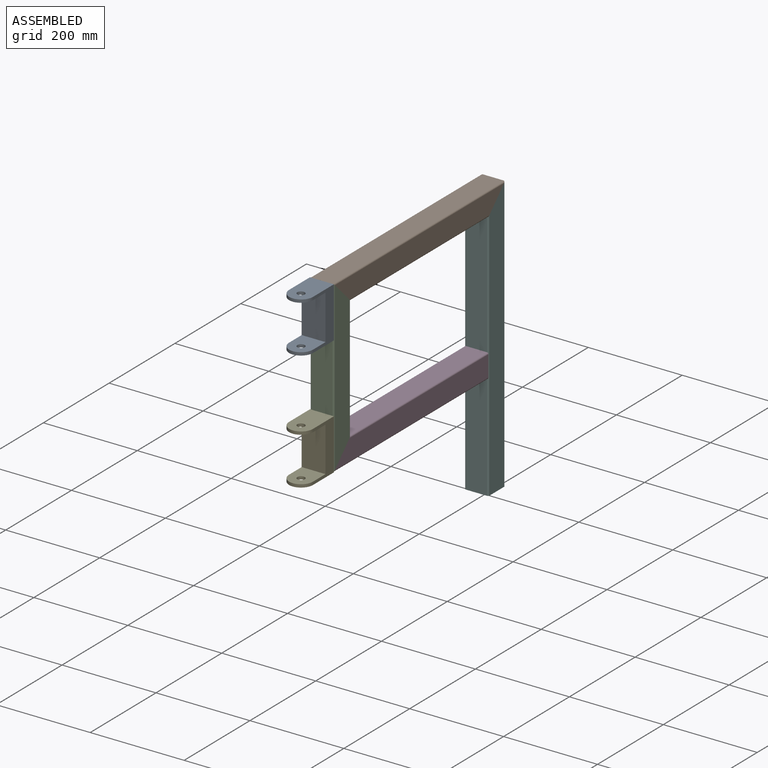
[diagram: assembled view]
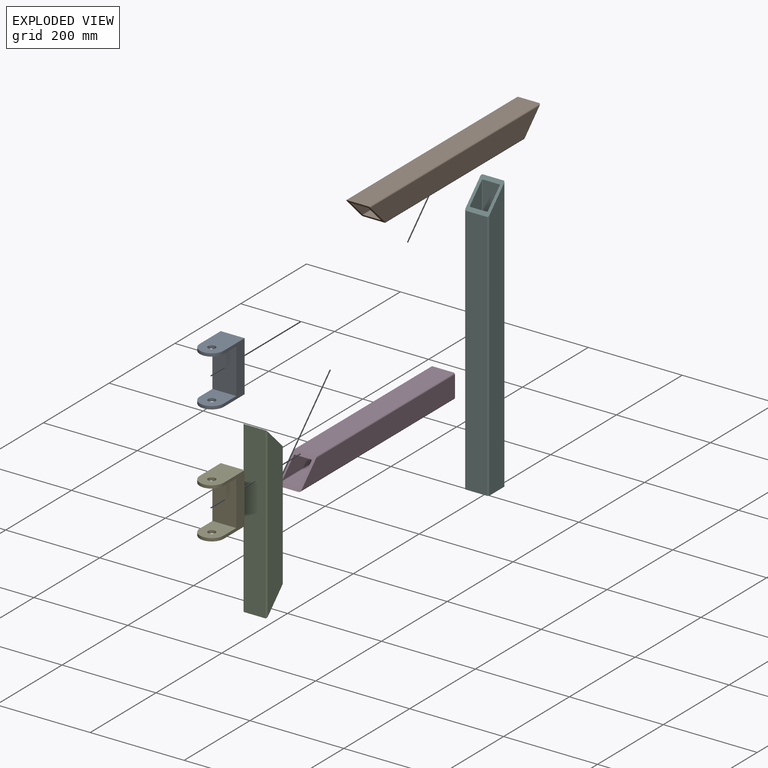
[diagram: exploded view]
GUIDED TOUR — MATED ASSEMBLY (Onshape document 9ad25f635f162971950e628b, AutoMate assembly 9ad25f635f162971950e628b_18f4b82e7d4711329bdc06ee_f6ed02566342cb4e374ab72a_default)

This assembly has 6 components, labeled P0..P5 below (a component is one placed occurrence of a part; the same part can appear more than once), held together by 6 mates. A mate is a constraint between two components; its type names the relative motion it leaves free:
  FASTENED — locks the two components together rigidly (no relative motion).
Axis/direction vectors are unit vectors and 'through' points are millimeter coordinates, both in the assembly's world frame.

MATES
  1. FASTENED "Fastened 1": P1 <-> P5, direction (1.000, 0.000, 0.000) through (0.00, 25.40, 587.38) mm
  2. FASTENED "Fastened 3": P2 <-> P1, direction (0.000, 0.707, 0.707) through (0.00, -488.95, 581.03) mm
  3. FASTENED "Fastened 5": P3 <-> P2, direction (0.000, -0.707, 0.707) through (0.00, -469.89, 250.84) mm
  4. FASTENED "Fastened 7": P4 <-> P2, direction (0.000, 1.000, 0.000) through (0.00, -495.30, 225.43) mm
  5. FASTENED "Fastened 4": P5 <-> P1, direction (0.000, -0.707, 0.707) through (0.00, 0.00, 561.98) mm
  6. FASTENED "Fastened 6": P0 <-> P2, direction (0.000, 1.000, 0.000) through (0.00, -495.30, 587.38) mm

ASSEMBLY ORDER
  1. P5 — the base component [order verified]
  2. P3 [order verified]
  3. P1 [order verified]
  4. P2 [order verified]
  5. P4 [order verified]
  6. P0 [order verified]
Order-tag legend:
  [order verified] — this step's position reverses a verified removal order: the component was checked to insert without passing through the ones already placed.

Of the 6 components, 6 carry the full construction recipe — the FeatureScript program that regenerates the part's solid from scratch; the rest are supplied as boundary geometry only.
Each toured component is shown spotlighted twice — in the assembled view, then in the exploded view, where a leader line traces a displaced component back to its assembled socket (saturated green if recipe-attached, orange if geometry-only; every other component desaturated gray) — followed by its recipe or geometry summary and the mates that hold it.
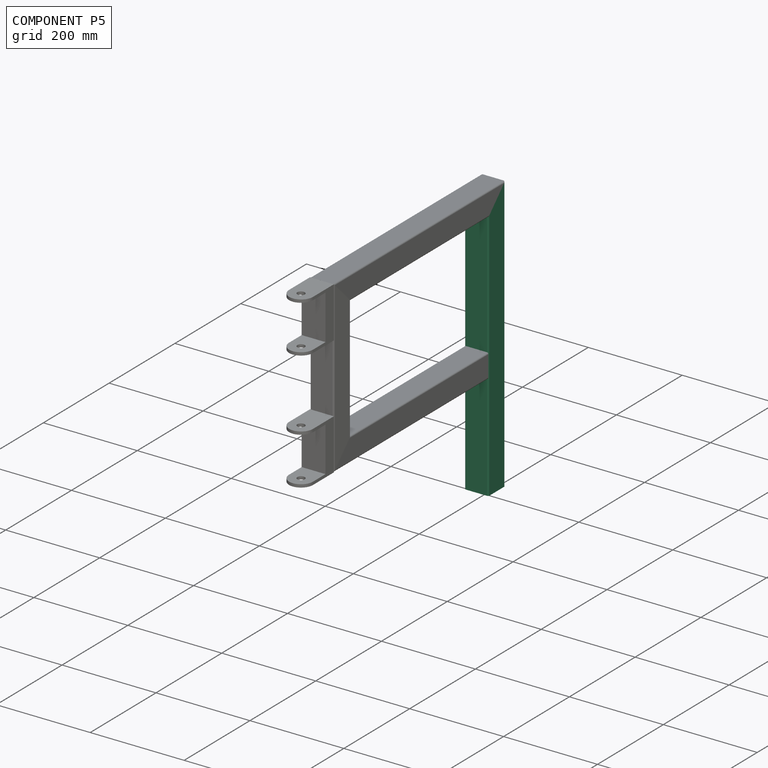
[diagram: component P5 — assembled]
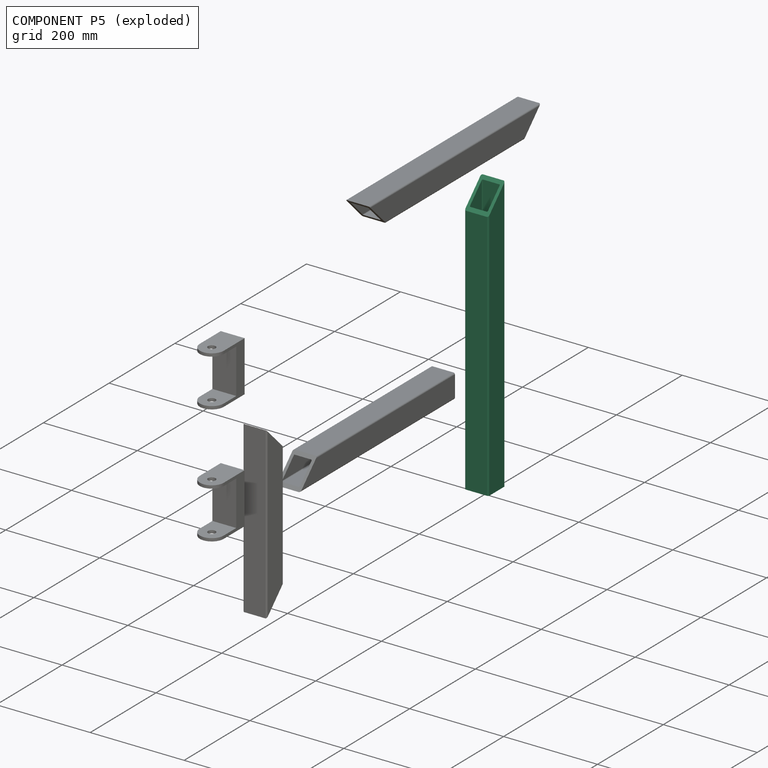
[diagram: component P5 — exploded]
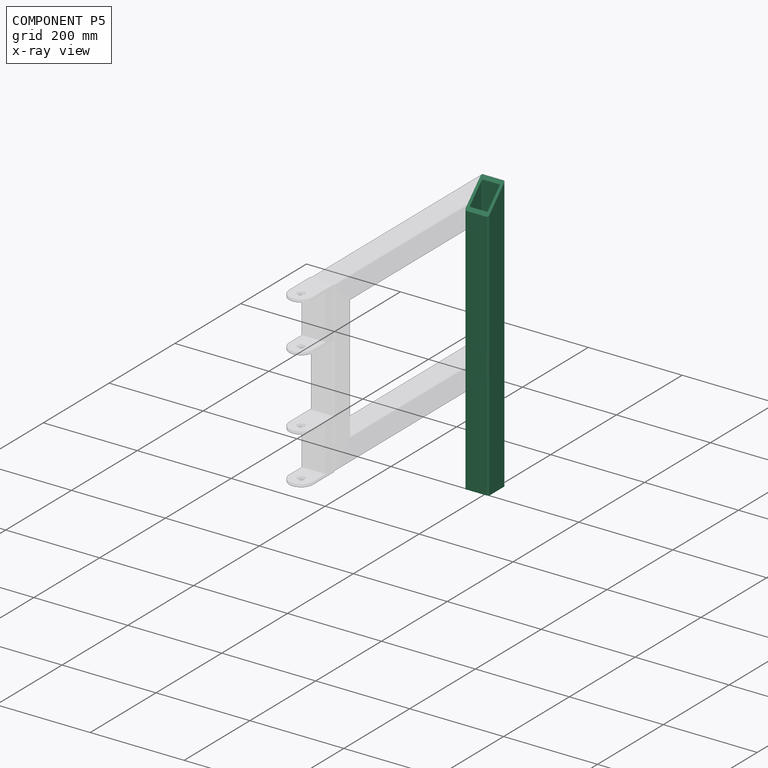
[diagram: component P5 — x-ray view]
COMPONENT P5 — recipe-attached (CADFS 00305997, mesh-verified: the recipe's output STEP matches this component's geometry to below the mesh-comparison resolution (tessellation chordal tolerance ~0.888 mm)).
Held by: FASTENED mate "Fastened 1" to P1; FASTENED mate "Fastened 4" to P1.
Construction recipe (FeatureScript — the CAD program that rebuilds this solid; sketch coordinates are in the units given by the * unit suffixes, e.g. mm):

FeatureScript 1511;
import(path : "onshape/std/geometry.fs", version : "1511.0");
import(path : "onshape/std/common.fs", version : "1511.0");
const mm = millimeter;
const VERTEX = EntityType.VERTEX;
const EDGE = EntityType.EDGE;
const FACE = EntityType.FACE;
const BODY = EntityType.BODY;
function v(x, y){return vector(x, y);}
function OD(order){return orderDisambiguation(order);}
function OSD(set){return originalSetDisambiguation(set);}
function TD(topology){return topologyDisambiguation(topology);}
function TDD(query){return trueDependencyDisambiguation(query);}
function sQuery(a, b, c) {return sketchEntityQuery(a, b, c);}

annotation { "Feature Type Name" : "Feature", "Feature Type Description" : "" }
export const myFeature = defineFeature(function(context is Context, id is Id, definition is map)
    precondition{}
    {
        {
            var Q0;
            Q0=qCreatedBy(makeId("Top.planeOp"),FACE);
            var sketch = newSketch(context, id + "F0", { "sketchPlane" : qUnion([Q0])});
            skLineSegment(sketch, "E0.bottom", {"start": v(-22.22, 25.4) * mm, "end": v(22.23, 25.4) * mm});
            skLineSegment(sketch, "E0.top", {"start": v(-22.23, -25.4) * mm, "end": v(22.23, -25.4) * mm});
            skLineSegment(sketch, "E0.left", {"start": v(-25.4, 22.22) * mm, "end": v(-25.4, -22.23) * mm});
            skLineSegment(sketch, "E0.right", {"start": v(25.4, 22.22) * mm, "end": v(25.4, -22.23) * mm});
            skPoint(sketch, "E0.middle", {"position": v(0, 0) * mm});
            skPoint(sketch, "E1.visualSharp", {"position": v(-25.4, 25.4) * mm});
            skArc(sketch, "E1.filletArc", {"start": v(-22.22, 25.4) * mm, "mid": v(-24.47, 24.47) * mm, "end": v(-25.4, 22.22) * mm});
            skPoint(sketch, "E2.visualSharp", {"position": v(-25.4, -25.4) * mm});
            skArc(sketch, "E2.filletArc", {"start": v(-25.4, -22.23) * mm, "mid": v(-24.47, -24.47) * mm, "end": v(-22.23, -25.4) * mm});
            skPoint(sketch, "E3.visualSharp", {"position": v(25.4, -25.4) * mm});
            skArc(sketch, "E3.filletArc", {"start": v(22.23, -25.4) * mm, "mid": v(24.47, -24.47) * mm, "end": v(25.4, -22.23) * mm});
            skPoint(sketch, "E4.visualSharp", {"position": v(25.4, 25.4) * mm});
            skArc(sketch, "E4.filletArc", {"start": v(25.4, 22.22) * mm, "mid": v(24.47, 24.47) * mm, "end": v(22.23, 25.4) * mm});
            skLineSegment(sketch, "E5.0", {"start": v(-17.46, 19.05) * mm, "end": v(17.46, 19.05) * mm});
            skLineSegment(sketch, "E5.1", {"start": v(-19.05, 17.46) * mm, "end": v(-19.05, -17.46) * mm});
            skLineSegment(sketch, "E5.2", {"start": v(-17.46, -19.05) * mm, "end": v(17.46, -19.05) * mm});
            skLineSegment(sketch, "E5.3", {"start": v(19.05, 17.46) * mm, "end": v(19.05, -17.46) * mm});
            skPoint(sketch, "E6.visualSharp", {"position": v(-19.05, 19.05) * mm});
            skArc(sketch, "E6.filletArc", {"start": v(-17.46, 19.05) * mm, "mid": v(-18.59, 18.59) * mm, "end": v(-19.05, 17.46) * mm});
            skPoint(sketch, "E7.visualSharp", {"position": v(-19.05, -19.05) * mm});
            skArc(sketch, "E7.filletArc", {"start": v(-19.05, -17.46) * mm, "mid": v(-18.59, -18.59) * mm, "end": v(-17.46, -19.05) * mm});
            skPoint(sketch, "E8.visualSharp", {"position": v(19.05, -19.05) * mm});
            skArc(sketch, "E8.filletArc", {"start": v(17.46, -19.05) * mm, "mid": v(18.59, -18.59) * mm, "end": v(19.05, -17.46) * mm});
            skPoint(sketch, "E9.visualSharp", {"position": v(19.05, 19.05) * mm});
            skArc(sketch, "E9.filletArc", {"start": v(19.05, 17.46) * mm, "mid": v(18.59, 18.59) * mm, "end": v(17.46, 19.05) * mm});
            skSolve(sketch);
        }
        {
            var Q0;
            Q0=makeQuery(id+"F0.imprint","IMPRINT",FACE,{"disambiguationData":[TD([[makeQuery(id+"F0.imprint","IMPRINT",EDGE,{"derivedFrom":sQuery(id+"F0.wireOp",EDGE,"E0.bottom")}),-1.0]])]});
            extrude(context, id + "F1", {"entities" : qUnion([Q0]), "depth" : 587.38 * mm});
        }
        {
            var Q0;
            Q0=makeQuery(id+"F1.opExtrude","SWEPT_FACE",FACE,{"disambiguationData":[OSD([sQuery(id+"F0.wireOp",EDGE,"E0.right")])]});
            var sketch = newSketch(context, id + "F2", { "sketchPlane" : qUnion([Q0])});
            skLineSegment(sketch, "E10", {"start": v(25.4, 587.38) * mm, "end": v(-25.4, 536.58) * mm});
            skLineSegment(sketch, "E11", {"start": v(-25.4, 536.58) * mm, "end": v(-25.4, 587.38) * mm});
            skLineSegment(sketch, "E12", {"start": v(-25.4, 587.38) * mm, "end": v(25.4, 587.38) * mm});
            skSolve(sketch);
        }
        {
            var Q0;
            Q0 = qSketchRegion(id + "F2", true);
            extrude(context, id + "F3", {"entities" : qUnion([Q0]), "operationType" : NewBodyOperationType.REMOVE, "endBound" : BoundingType.THROUGH_ALL, "oppositeDirection" : true, "depth" : 25.4 * mm});
        }
    });
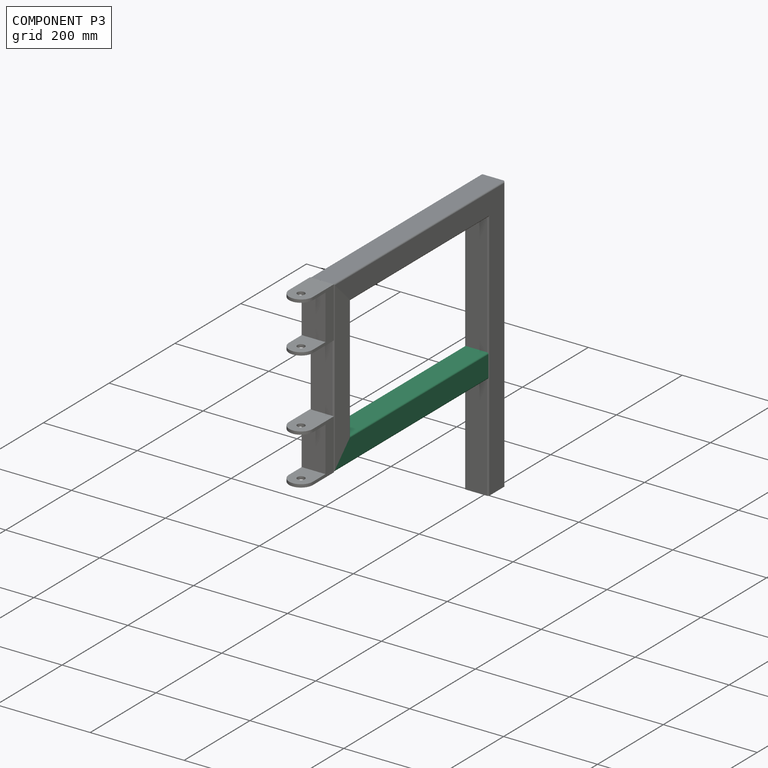
[diagram: component P3 — assembled]
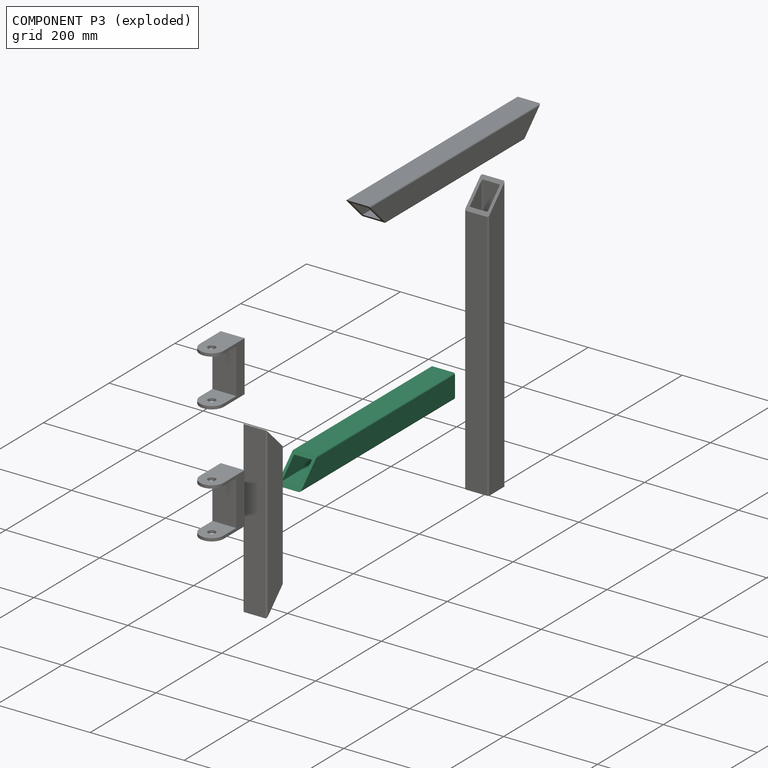
[diagram: component P3 — exploded]
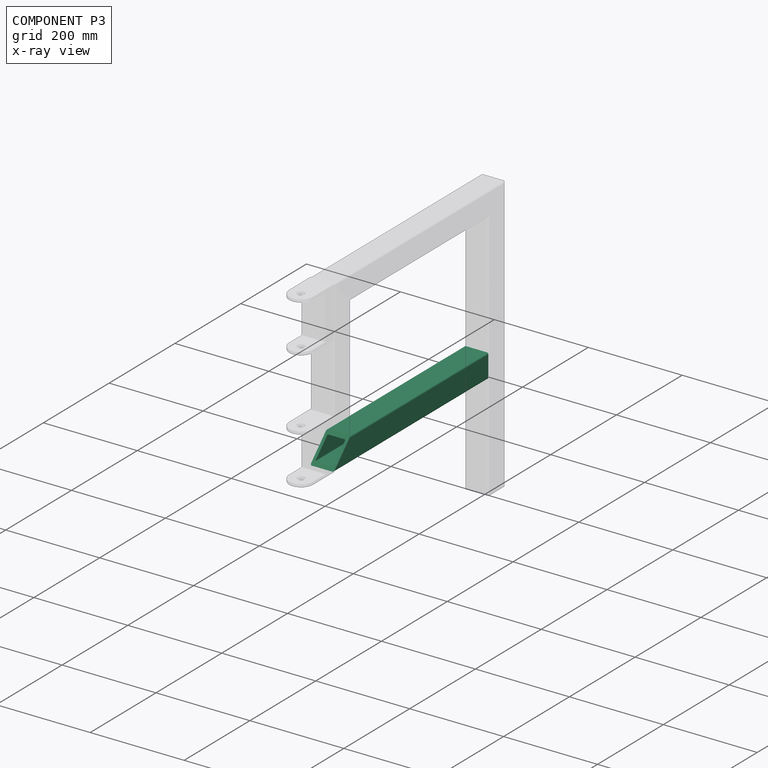
[diagram: component P3 — x-ray view]
COMPONENT P3 — recipe-attached (CADFS 00306060, mesh-verified: the recipe's output STEP matches this component's geometry to below the mesh-comparison resolution (tessellation chordal tolerance ~0.713 mm)).
Held by: FASTENED mate "Fastened 5" to P2.
Construction recipe (FeatureScript — the CAD program that rebuilds this solid; sketch coordinates are in the units given by the * unit suffixes, e.g. mm):

FeatureScript 1511;
import(path : "onshape/std/geometry.fs", version : "1511.0");
import(path : "onshape/std/common.fs", version : "1511.0");
const mm = millimeter;
const VERTEX = EntityType.VERTEX;
const EDGE = EntityType.EDGE;
const FACE = EntityType.FACE;
const BODY = EntityType.BODY;
function v(x, y){return vector(x, y);}
function OD(order){return orderDisambiguation(order);}
function OSD(set){return originalSetDisambiguation(set);}
function TD(topology){return topologyDisambiguation(topology);}
function TDD(query){return trueDependencyDisambiguation(query);}
function sQuery(a, b, c) {return sketchEntityQuery(a, b, c);}

annotation { "Feature Type Name" : "Feature", "Feature Type Description" : "" }
export const myFeature = defineFeature(function(context is Context, id is Id, definition is map)
    precondition{}
    {
        {
            var Q0;
            Q0=qCreatedBy(makeId("Top.planeOp"),FACE);
            var sketch = newSketch(context, id + "F0", { "sketchPlane" : qUnion([Q0])});
            skLineSegment(sketch, "E0.bottom", {"start": v(-22.22, 25.4) * mm, "end": v(22.23, 25.4) * mm});
            skLineSegment(sketch, "E0.top", {"start": v(-22.23, -25.4) * mm, "end": v(22.23, -25.4) * mm});
            skLineSegment(sketch, "E0.left", {"start": v(-25.4, 22.22) * mm, "end": v(-25.4, -22.23) * mm});
            skLineSegment(sketch, "E0.right", {"start": v(25.4, 22.22) * mm, "end": v(25.4, -22.23) * mm});
            skPoint(sketch, "E0.middle", {"position": v(0, 0) * mm});
            skPoint(sketch, "E1.visualSharp", {"position": v(-25.4, 25.4) * mm});
            skArc(sketch, "E1.filletArc", {"start": v(-22.22, 25.4) * mm, "mid": v(-24.47, 24.47) * mm, "end": v(-25.4, 22.22) * mm});
            skPoint(sketch, "E2.visualSharp", {"position": v(-25.4, -25.4) * mm});
            skArc(sketch, "E2.filletArc", {"start": v(-25.4, -22.23) * mm, "mid": v(-24.47, -24.47) * mm, "end": v(-22.23, -25.4) * mm});
            skPoint(sketch, "E3.visualSharp", {"position": v(25.4, -25.4) * mm});
            skArc(sketch, "E3.filletArc", {"start": v(22.23, -25.4) * mm, "mid": v(24.47, -24.47) * mm, "end": v(25.4, -22.23) * mm});
            skPoint(sketch, "E4.visualSharp", {"position": v(25.4, 25.4) * mm});
            skArc(sketch, "E4.filletArc", {"start": v(25.4, 22.22) * mm, "mid": v(24.47, 24.47) * mm, "end": v(22.23, 25.4) * mm});
            skLineSegment(sketch, "E5.0", {"start": v(-17.46, 19.05) * mm, "end": v(17.46, 19.05) * mm});
            skLineSegment(sketch, "E5.1", {"start": v(-19.05, 17.46) * mm, "end": v(-19.05, -17.46) * mm});
            skLineSegment(sketch, "E5.2", {"start": v(-17.46, -19.05) * mm, "end": v(17.46, -19.05) * mm});
            skLineSegment(sketch, "E5.3", {"start": v(19.05, 17.46) * mm, "end": v(19.05, -17.46) * mm});
            skPoint(sketch, "E6.visualSharp", {"position": v(-19.05, 19.05) * mm});
            skArc(sketch, "E6.filletArc", {"start": v(-17.46, 19.05) * mm, "mid": v(-18.59, 18.59) * mm, "end": v(-19.05, 17.46) * mm});
            skPoint(sketch, "E7.visualSharp", {"position": v(-19.05, -19.05) * mm});
            skArc(sketch, "E7.filletArc", {"start": v(-19.05, -17.46) * mm, "mid": v(-18.59, -18.59) * mm, "end": v(-17.46, -19.05) * mm});
            skPoint(sketch, "E8.visualSharp", {"position": v(19.05, -19.05) * mm});
            skArc(sketch, "E8.filletArc", {"start": v(17.46, -19.05) * mm, "mid": v(18.59, -18.59) * mm, "end": v(19.05, -17.46) * mm});
            skPoint(sketch, "E9.visualSharp", {"position": v(19.05, 19.05) * mm});
            skArc(sketch, "E9.filletArc", {"start": v(19.05, 17.46) * mm, "mid": v(18.59, 18.59) * mm, "end": v(17.46, 19.05) * mm});
            skSolve(sketch);
        }
        {
            var Q0;
            Q0=makeQuery(id+"F0.imprint","IMPRINT",FACE,{"disambiguationData":[TD([[makeQuery(id+"F0.imprint","IMPRINT",EDGE,{"derivedFrom":sQuery(id+"F0.wireOp",EDGE,"E0.bottom")}),-1.0]])]});
            extrude(context, id + "F1", {"entities" : qUnion([Q0]), "depth" : 469.9 * mm});
        }
        {
            var Q0;
            Q0=makeQuery(id+"F1.opExtrude","SWEPT_FACE",FACE,{"disambiguationData":[OSD([sQuery(id+"F0.wireOp",EDGE,"E0.right")])]});
            var sketch = newSketch(context, id + "F2", { "sketchPlane" : qUnion([Q0])});
            skLineSegment(sketch, "E10", {"start": v(25.4, 469.9) * mm, "end": v(-25.4, 419.1) * mm});
            skLineSegment(sketch, "E11", {"start": v(-25.4, 419.1) * mm, "end": v(-25.4, 469.9) * mm});
            skLineSegment(sketch, "E12", {"start": v(-25.4, 469.9) * mm, "end": v(25.4, 469.9) * mm});
            skSolve(sketch);
        }
        {
            var Q0;
            Q0=qSketchRegion(id+"F2",true);
            extrude(context, id + "F3", {"entities" : qUnion([Q0]), "operationType" : NewBodyOperationType.REMOVE, "endBound" : BoundingType.THROUGH_ALL, "oppositeDirection" : true, "depth" : 25.4 * mm});
        }
    });
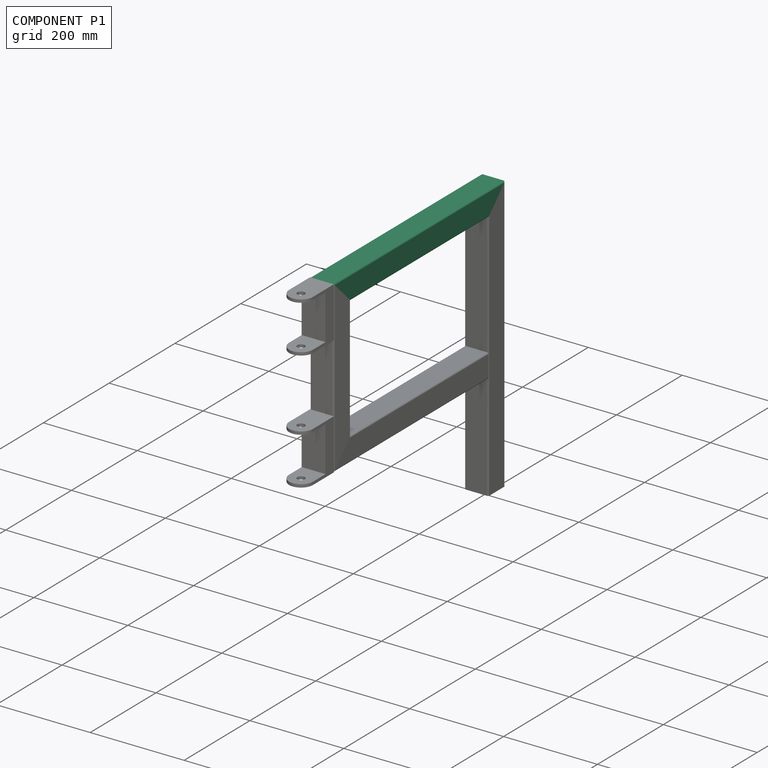
[diagram: component P1 — assembled]
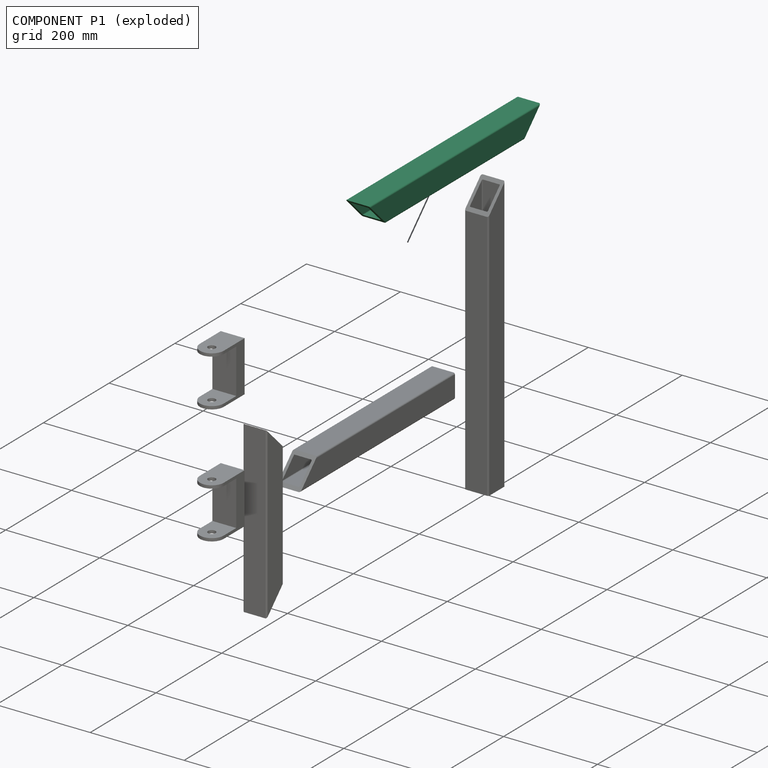
[diagram: component P1 — exploded]
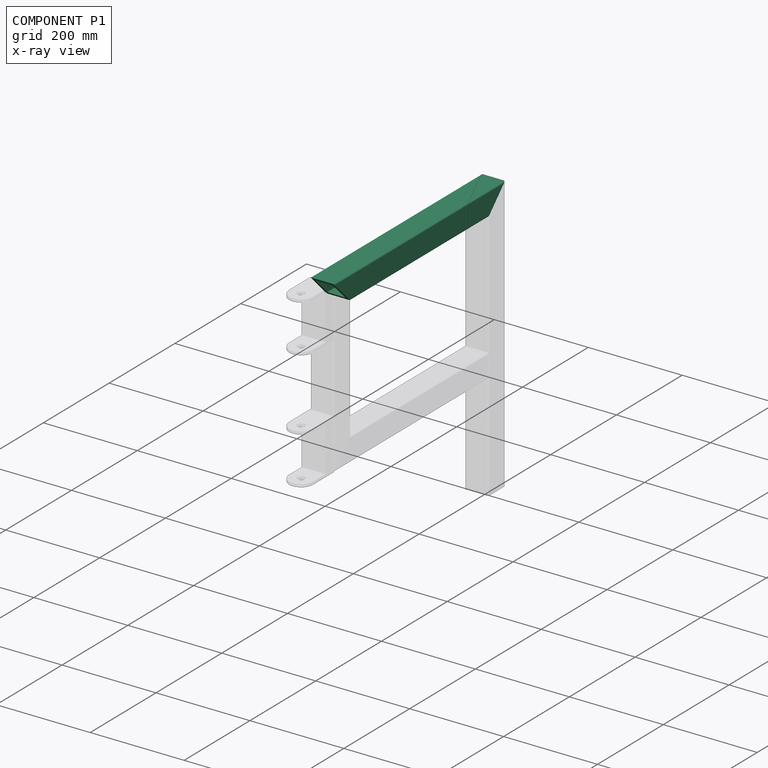
[diagram: component P1 — x-ray view]
COMPONENT P1 — recipe-attached (CADFS 00306047, mesh-verified: the recipe's output STEP matches this component's geometry to below the mesh-comparison resolution (tessellation chordal tolerance ~0.788 mm)).
Held by: FASTENED mate "Fastened 1" to P5; FASTENED mate "Fastened 3" to P2; FASTENED mate "Fastened 4" to P5.
Construction recipe (FeatureScript — the CAD program that rebuilds this solid; sketch coordinates are in the units given by the * unit suffixes, e.g. mm):

FeatureScript 1511;
import(path : "onshape/std/geometry.fs", version : "1511.0");
import(path : "onshape/std/common.fs", version : "1511.0");
const mm = millimeter;
const VERTEX = EntityType.VERTEX;
const EDGE = EntityType.EDGE;
const FACE = EntityType.FACE;
const BODY = EntityType.BODY;
function v(x, y){return vector(x, y);}
function OD(order){return orderDisambiguation(order);}
function OSD(set){return originalSetDisambiguation(set);}
function TD(topology){return topologyDisambiguation(topology);}
function TDD(query){return trueDependencyDisambiguation(query);}
function sQuery(a, b, c) {return sketchEntityQuery(a, b, c);}

annotation { "Feature Type Name" : "Feature", "Feature Type Description" : "" }
export const myFeature = defineFeature(function(context is Context, id is Id, definition is map)
    precondition{}
    {
        {
            var Q0;
            Q0=qCreatedBy(makeId("Top.planeOp"),FACE);
            var sketch = newSketch(context, id + "F0", { "sketchPlane" : qUnion([Q0])});
            skLineSegment(sketch, "E0.bottom", {"start": v(-22.22, 25.4) * mm, "end": v(22.23, 25.4) * mm});
            skLineSegment(sketch, "E0.top", {"start": v(-22.23, -25.4) * mm, "end": v(22.23, -25.4) * mm});
            skLineSegment(sketch, "E0.left", {"start": v(-25.4, 22.22) * mm, "end": v(-25.4, -22.23) * mm});
            skLineSegment(sketch, "E0.right", {"start": v(25.4, 22.22) * mm, "end": v(25.4, -22.23) * mm});
            skPoint(sketch, "E0.middle", {"position": v(0, 0) * mm});
            skPoint(sketch, "E1.visualSharp", {"position": v(-25.4, 25.4) * mm});
            skArc(sketch, "E1.filletArc", {"start": v(-22.22, 25.4) * mm, "mid": v(-24.47, 24.47) * mm, "end": v(-25.4, 22.22) * mm});
            skPoint(sketch, "E2.visualSharp", {"position": v(-25.4, -25.4) * mm});
            skArc(sketch, "E2.filletArc", {"start": v(-25.4, -22.23) * mm, "mid": v(-24.47, -24.47) * mm, "end": v(-22.23, -25.4) * mm});
            skPoint(sketch, "E3.visualSharp", {"position": v(25.4, -25.4) * mm});
            skArc(sketch, "E3.filletArc", {"start": v(22.23, -25.4) * mm, "mid": v(24.47, -24.47) * mm, "end": v(25.4, -22.23) * mm});
            skPoint(sketch, "E4.visualSharp", {"position": v(25.4, 25.4) * mm});
            skArc(sketch, "E4.filletArc", {"start": v(25.4, 22.22) * mm, "mid": v(24.47, 24.47) * mm, "end": v(22.23, 25.4) * mm});
            skLineSegment(sketch, "E5.0", {"start": v(-17.46, 19.05) * mm, "end": v(17.46, 19.05) * mm});
            skLineSegment(sketch, "E5.1", {"start": v(-19.05, 17.46) * mm, "end": v(-19.05, -17.46) * mm});
            skLineSegment(sketch, "E5.2", {"start": v(-17.46, -19.05) * mm, "end": v(17.46, -19.05) * mm});
            skLineSegment(sketch, "E5.3", {"start": v(19.05, 17.46) * mm, "end": v(19.05, -17.46) * mm});
            skPoint(sketch, "E6.visualSharp", {"position": v(-19.05, 19.05) * mm});
            skArc(sketch, "E6.filletArc", {"start": v(-17.46, 19.05) * mm, "mid": v(-18.59, 18.59) * mm, "end": v(-19.05, 17.46) * mm});
            skPoint(sketch, "E7.visualSharp", {"position": v(-19.05, -19.05) * mm});
            skArc(sketch, "E7.filletArc", {"start": v(-19.05, -17.46) * mm, "mid": v(-18.59, -18.59) * mm, "end": v(-17.46, -19.05) * mm});
            skPoint(sketch, "E8.visualSharp", {"position": v(19.05, -19.05) * mm});
            skArc(sketch, "E8.filletArc", {"start": v(17.46, -19.05) * mm, "mid": v(18.59, -18.59) * mm, "end": v(19.05, -17.46) * mm});
            skPoint(sketch, "E9.visualSharp", {"position": v(19.05, 19.05) * mm});
            skArc(sketch, "E9.filletArc", {"start": v(19.05, 17.46) * mm, "mid": v(18.59, 18.59) * mm, "end": v(17.46, 19.05) * mm});
            skSolve(sketch);
        }
        {
            var Q0;
            Q0=makeQuery(id+"F0.imprint","IMPRINT",FACE,{"disambiguationData":[TD([[makeQuery(id+"F0.imprint","IMPRINT",EDGE,{"derivedFrom":sQuery(id+"F0.wireOp",EDGE,"E0.bottom")}),-1.0]])]});
            extrude(context, id + "F1", {"entities" : qUnion([Q0]), "endBound" : BoundingType.SYMMETRIC, "depth" : 520.7 * mm});
        }
        {
            var Q0;
            Q0=makeQuery(id+"F1.opExtrude","SWEPT_FACE",FACE,{"disambiguationData":[OSD([sQuery(id+"F0.wireOp",EDGE,"E0.right")])]});
            var sketch = newSketch(context, id + "F2", { "sketchPlane" : qUnion([Q0])});
            skLineSegment(sketch, "E10", {"start": v(25.4, 260.35) * mm, "end": v(-25.4, 209.55) * mm});
            skLineSegment(sketch, "E11", {"start": v(-25.4, 209.55) * mm, "end": v(-25.4, 260.35) * mm});
            skLineSegment(sketch, "E12", {"start": v(-25.4, 260.35) * mm, "end": v(25.4, 260.35) * mm});
            skLineSegment(sketch, "E13", {"start": v(25.4, -260.35) * mm, "end": v(-25.4, -209.55) * mm});
            skLineSegment(sketch, "E14", {"start": v(-25.4, -209.55) * mm, "end": v(-25.4, -260.35) * mm});
            skLineSegment(sketch, "E15", {"start": v(-25.4, -260.35) * mm, "end": v(25.4, -260.35) * mm});
            skSolve(sketch);
        }
        {
            var Q0;
            Q0=qSketchRegion(id+"F2",true);
            extrude(context, id + "F3", {"entities" : qUnion([Q0]), "operationType" : NewBodyOperationType.REMOVE, "endBound" : BoundingType.THROUGH_ALL, "oppositeDirection" : true, "depth" : 25.4 * mm});
        }
    });
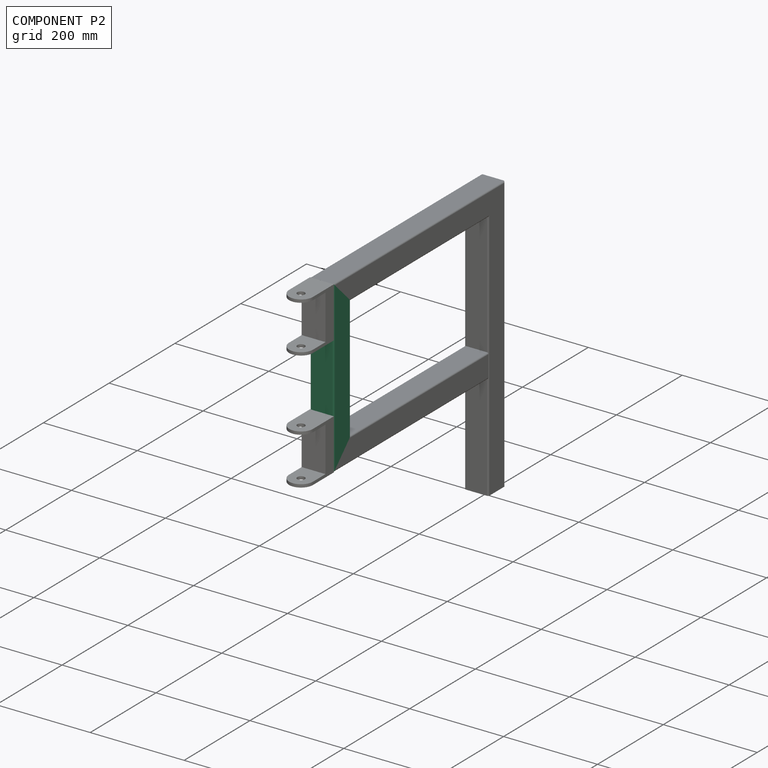
[diagram: component P2 — assembled]
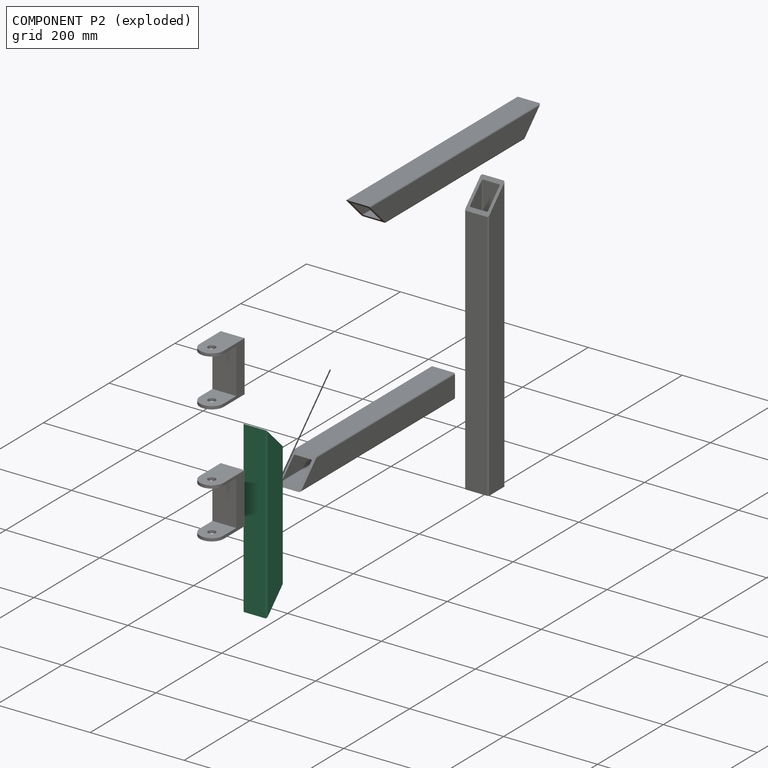
[diagram: component P2 — exploded]
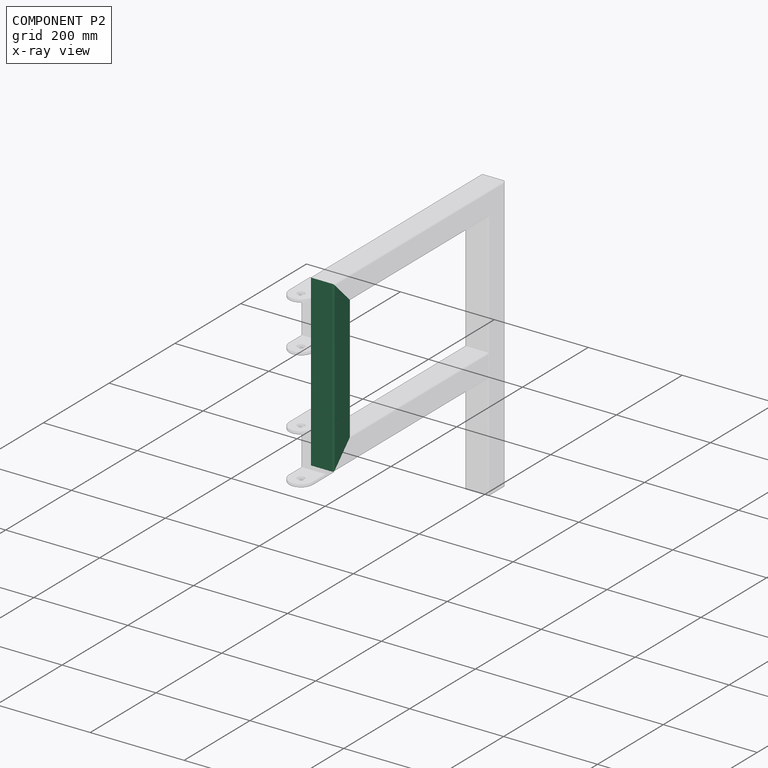
[diagram: component P2 — x-ray view]
COMPONENT P2 — recipe-attached (CADFS 00306058, mesh-verified: the recipe's output STEP matches this component's geometry to below the mesh-comparison resolution (tessellation chordal tolerance ~0.554 mm)).
Held by: FASTENED mate "Fastened 3" to P1; FASTENED mate "Fastened 5" to P3; FASTENED mate "Fastened 7" to P4; FASTENED mate "Fastened 6" to P0.
Construction recipe (FeatureScript — the CAD program that rebuilds this solid; sketch coordinates are in the units given by the * unit suffixes, e.g. mm):

FeatureScript 1511;
import(path : "onshape/std/geometry.fs", version : "1511.0");
import(path : "onshape/std/common.fs", version : "1511.0");
const mm = millimeter;
const VERTEX = EntityType.VERTEX;
const EDGE = EntityType.EDGE;
const FACE = EntityType.FACE;
const BODY = EntityType.BODY;
function v(x, y){return vector(x, y);}
function OD(order){return orderDisambiguation(order);}
function OSD(set){return originalSetDisambiguation(set);}
function TD(topology){return topologyDisambiguation(topology);}
function TDD(query){return trueDependencyDisambiguation(query);}
function sQuery(a, b, c) {return sketchEntityQuery(a, b, c);}

annotation { "Feature Type Name" : "Feature", "Feature Type Description" : "" }
export const myFeature = defineFeature(function(context is Context, id is Id, definition is map)
    precondition{}
    {
        {
            var Q0;
            Q0=qCreatedBy(makeId("Top.planeOp"),FACE);
            var sketch = newSketch(context, id + "F0", { "sketchPlane" : qUnion([Q0])});
            skLineSegment(sketch, "E0.bottom", {"start": v(-22.22, 25.4) * mm, "end": v(22.23, 25.4) * mm});
            skLineSegment(sketch, "E0.top", {"start": v(-22.23, -25.4) * mm, "end": v(22.23, -25.4) * mm});
            skLineSegment(sketch, "E0.left", {"start": v(-25.4, 22.22) * mm, "end": v(-25.4, -22.23) * mm});
            skLineSegment(sketch, "E0.right", {"start": v(25.4, 22.22) * mm, "end": v(25.4, -22.23) * mm});
            skPoint(sketch, "E0.middle", {"position": v(0, 0) * mm});
            skPoint(sketch, "E1.visualSharp", {"position": v(-25.4, 25.4) * mm});
            skArc(sketch, "E1.filletArc", {"start": v(-22.22, 25.4) * mm, "mid": v(-24.47, 24.47) * mm, "end": v(-25.4, 22.22) * mm});
            skPoint(sketch, "E2.visualSharp", {"position": v(-25.4, -25.4) * mm});
            skArc(sketch, "E2.filletArc", {"start": v(-25.4, -22.23) * mm, "mid": v(-24.47, -24.47) * mm, "end": v(-22.23, -25.4) * mm});
            skPoint(sketch, "E3.visualSharp", {"position": v(25.4, -25.4) * mm});
            skArc(sketch, "E3.filletArc", {"start": v(22.23, -25.4) * mm, "mid": v(24.47, -24.47) * mm, "end": v(25.4, -22.23) * mm});
            skPoint(sketch, "E4.visualSharp", {"position": v(25.4, 25.4) * mm});
            skArc(sketch, "E4.filletArc", {"start": v(25.4, 22.22) * mm, "mid": v(24.47, 24.47) * mm, "end": v(22.23, 25.4) * mm});
            skLineSegment(sketch, "E5.0", {"start": v(-17.46, 19.05) * mm, "end": v(17.46, 19.05) * mm});
            skLineSegment(sketch, "E5.1", {"start": v(-19.05, 17.46) * mm, "end": v(-19.05, -17.46) * mm});
            skLineSegment(sketch, "E5.2", {"start": v(-17.46, -19.05) * mm, "end": v(17.46, -19.05) * mm});
            skLineSegment(sketch, "E5.3", {"start": v(19.05, 17.46) * mm, "end": v(19.05, -17.46) * mm});
            skPoint(sketch, "E6.visualSharp", {"position": v(-19.05, 19.05) * mm});
            skArc(sketch, "E6.filletArc", {"start": v(-17.46, 19.05) * mm, "mid": v(-18.59, 18.59) * mm, "end": v(-19.05, 17.46) * mm});
            skPoint(sketch, "E7.visualSharp", {"position": v(-19.05, -19.05) * mm});
            skArc(sketch, "E7.filletArc", {"start": v(-19.05, -17.46) * mm, "mid": v(-18.59, -18.59) * mm, "end": v(-17.46, -19.05) * mm});
            skPoint(sketch, "E8.visualSharp", {"position": v(19.05, -19.05) * mm});
            skArc(sketch, "E8.filletArc", {"start": v(17.46, -19.05) * mm, "mid": v(18.59, -18.59) * mm, "end": v(19.05, -17.46) * mm});
            skPoint(sketch, "E9.visualSharp", {"position": v(19.05, 19.05) * mm});
            skArc(sketch, "E9.filletArc", {"start": v(19.05, 17.46) * mm, "mid": v(18.59, 18.59) * mm, "end": v(17.46, 19.05) * mm});
            skSolve(sketch);
        }
        {
            var Q0;
            Q0=makeQuery(id+"F0.imprint","IMPRINT",FACE,{"disambiguationData":[TD([[makeQuery(id+"F0.imprint","IMPRINT",EDGE,{"derivedFrom":sQuery(id+"F0.wireOp",EDGE,"E0.bottom")}),-1.0]])]});
            extrude(context, id + "F1", {"entities" : qUnion([Q0]), "endBound" : BoundingType.SYMMETRIC, "depth" : 361.95 * mm});
        }
        {
            var Q0;
            Q0=makeQuery(id+"F1.opExtrude","SWEPT_FACE",FACE,{"disambiguationData":[OSD([sQuery(id+"F0.wireOp",EDGE,"E0.right")])]});
            var sketch = newSketch(context, id + "F2", { "sketchPlane" : qUnion([Q0])});
            skLineSegment(sketch, "E10", {"start": v(25.4, 180.98) * mm, "end": v(-25.4, 130.17) * mm});
            skLineSegment(sketch, "E11", {"start": v(-25.4, 130.17) * mm, "end": v(-25.4, 180.97) * mm});
            skLineSegment(sketch, "E12", {"start": v(-25.4, 180.97) * mm, "end": v(25.4, 180.98) * mm});
            skLineSegment(sketch, "E13", {"start": v(25.4, -180.98) * mm, "end": v(-25.4, -130.17) * mm});
            skLineSegment(sketch, "E14", {"start": v(-25.4, -130.17) * mm, "end": v(-25.4, -180.98) * mm});
            skLineSegment(sketch, "E15", {"start": v(-25.4, -180.98) * mm, "end": v(25.4, -180.97) * mm});
            skSolve(sketch);
        }
        {
            var Q0;
            Q0=qSketchRegion(id+"F2",true);
            extrude(context, id + "F3", {"entities" : qUnion([Q0]), "operationType" : NewBodyOperationType.REMOVE, "endBound" : BoundingType.THROUGH_ALL, "oppositeDirection" : true, "depth" : 25.4 * mm});
        }
    });
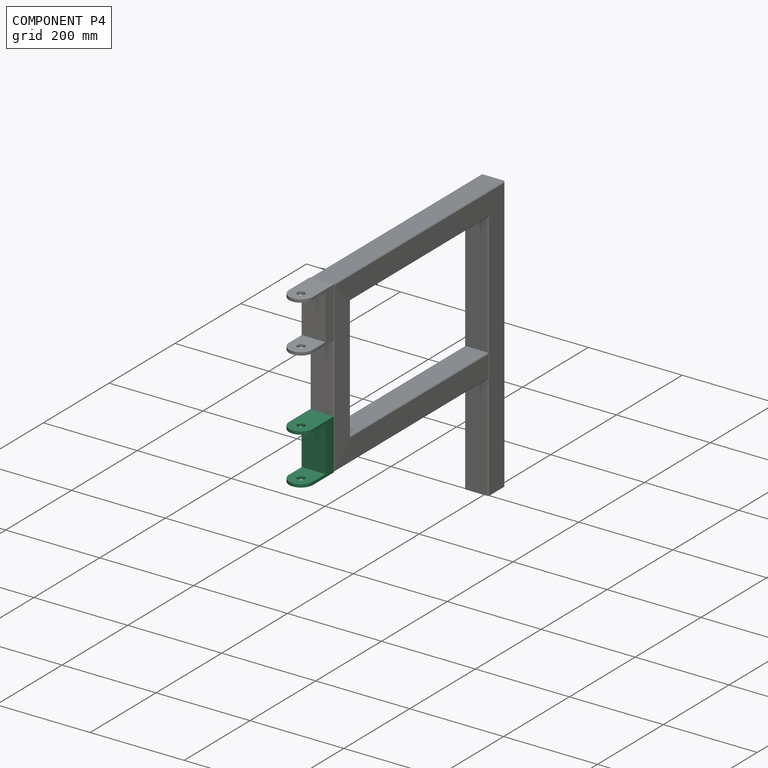
[diagram: component P4 — assembled]
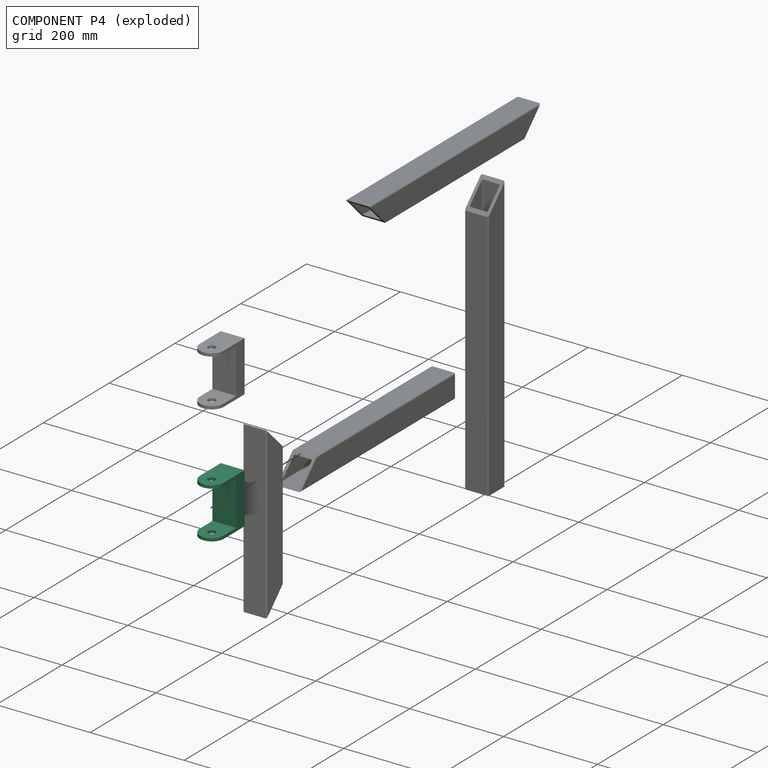
[diagram: component P4 — exploded]
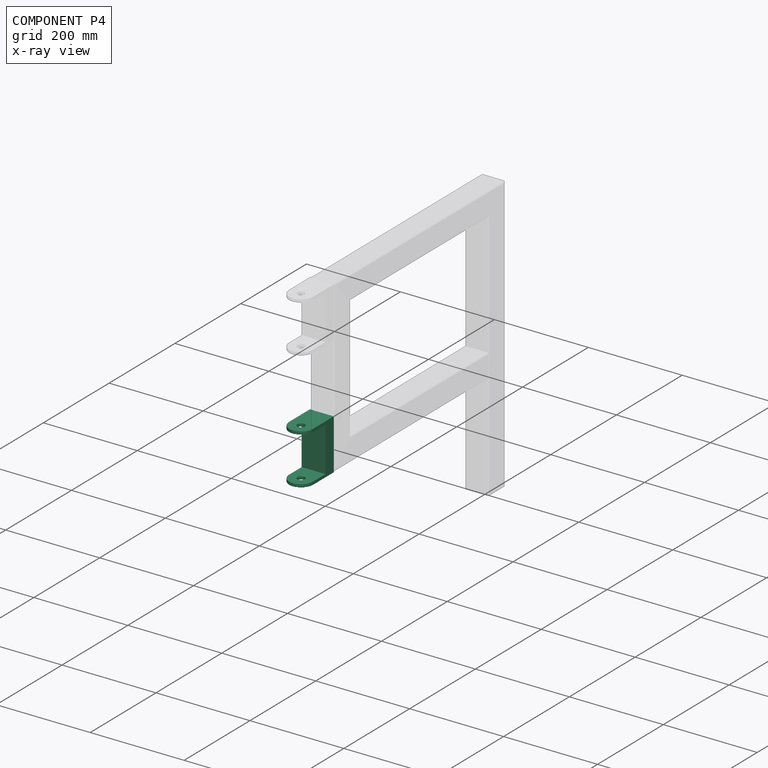
[diagram: component P4 — x-ray view]
COMPONENT P4 — same part as P0 (CADFS 00307764); its construction recipe is shown at P0.
Held by: FASTENED mate "Fastened 7" to P2.
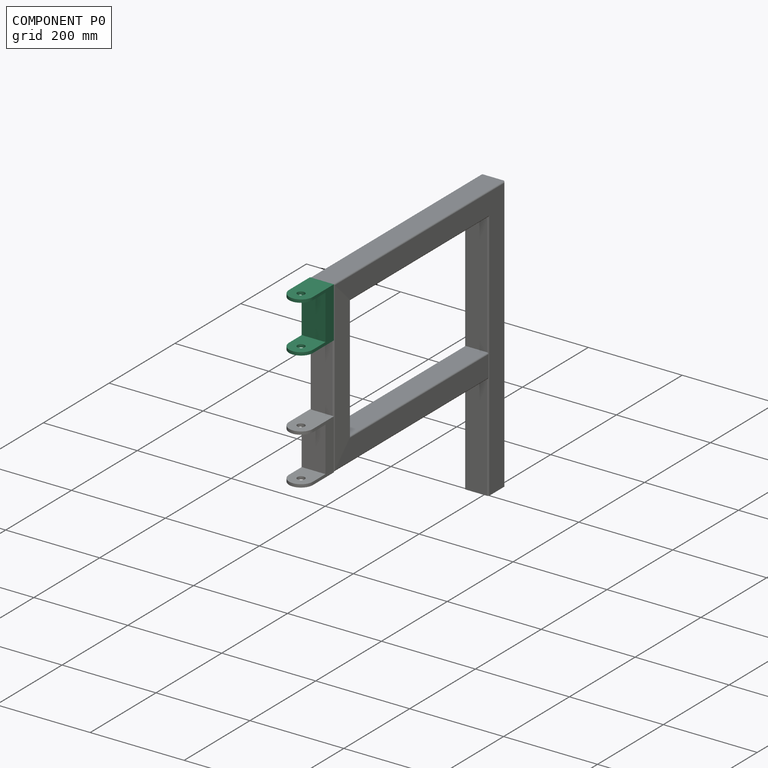
[diagram: component P0 — assembled]
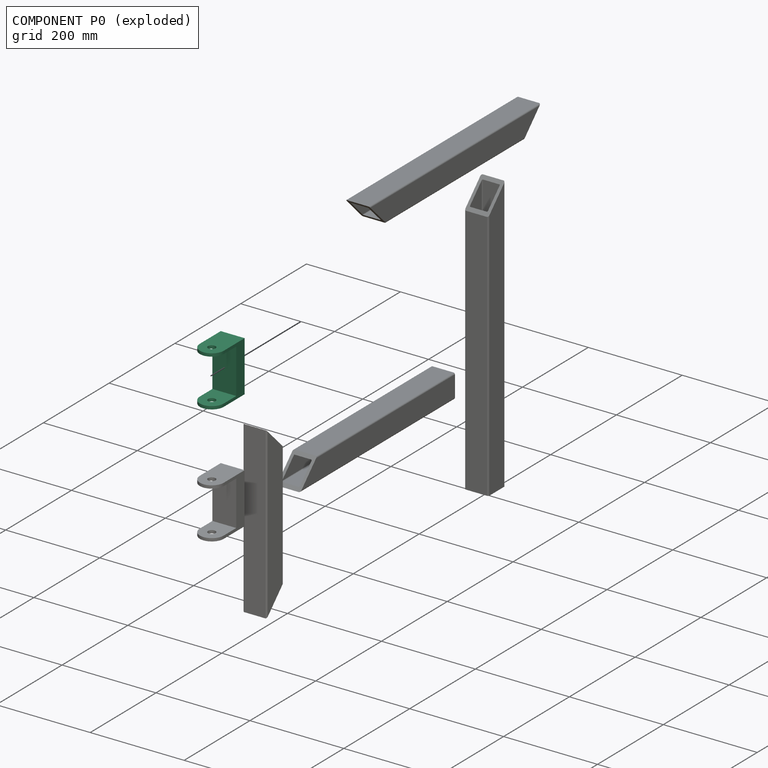
[diagram: component P0 — exploded]
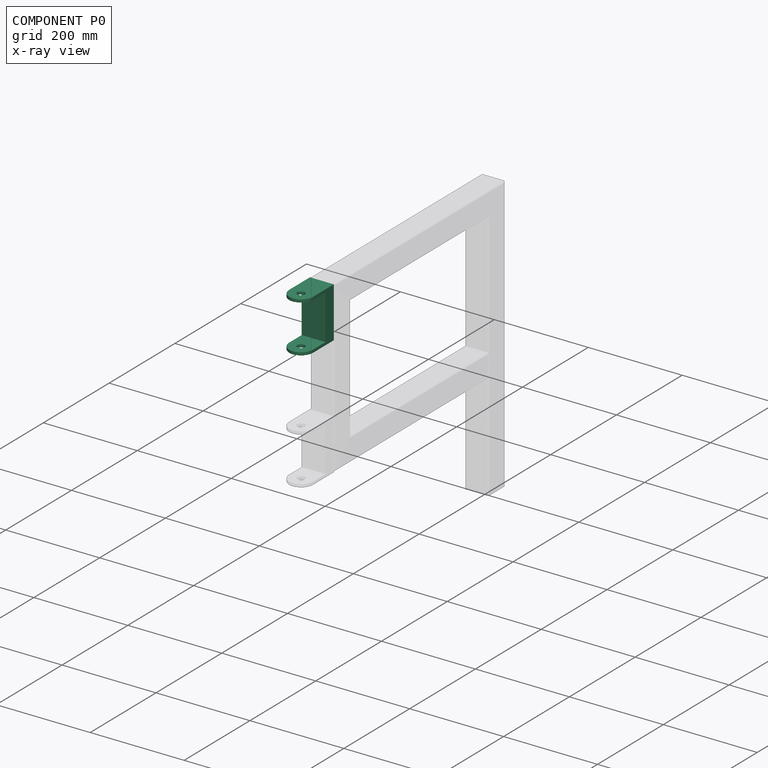
[diagram: component P0 — x-ray view]
COMPONENT P0 — recipe-attached (CADFS 00307764, mesh-verified: the recipe's output STEP matches this component's geometry to below the mesh-comparison resolution (tessellation chordal tolerance ~0.223 mm)).
Held by: FASTENED mate "Fastened 6" to P2.
Construction recipe (FeatureScript — the CAD program that rebuilds this solid; sketch coordinates are in the units given by the * unit suffixes, e.g. mm):

FeatureScript 1511;
import(path : "onshape/std/geometry.fs", version : "1511.0");
import(path : "onshape/std/common.fs", version : "1511.0");
const mm = millimeter;
const VERTEX = EntityType.VERTEX;
const EDGE = EntityType.EDGE;
const FACE = EntityType.FACE;
const BODY = EntityType.BODY;
function v(x, y){return vector(x, y);}
function OD(order){return orderDisambiguation(order);}
function OSD(set){return originalSetDisambiguation(set);}
function TD(topology){return topologyDisambiguation(topology);}
function TDD(query){return trueDependencyDisambiguation(query);}
function sQuery(a, b, c) {return sketchEntityQuery(a, b, c);}

annotation { "Feature Type Name" : "Feature", "Feature Type Description" : "" }
export const myFeature = defineFeature(function(context is Context, id is Id, definition is map)
    precondition{}
    {
        {
            var Q0;
            Q0=qCreatedBy(makeId("Top.planeOp"),FACE);
            var sketch = newSketch(context, id + "F0", { "sketchPlane" : qUnion([Q0])});
            skLineSegment(sketch, "E0.bottom", {"start": v(-25.4, 63.5) * mm, "end": v(25.4, 63.5) * mm});
            skLineSegment(sketch, "E0.top", {"start": v(-25.4, 0) * mm, "end": v(25.4, 0) * mm});
            skLineSegment(sketch, "E0.left", {"start": v(-25.4, 63.5) * mm, "end": v(-25.4, 0) * mm});
            skLineSegment(sketch, "E0.right", {"start": v(25.4, 63.5) * mm, "end": v(25.4, 0) * mm});
            skArc(sketch, "E1", {"start": v(-25.4, 0) * mm, "mid": v(0, -25.4) * mm, "end": v(25.4, 0) * mm});
            skSolve(sketch);
        }
        {
            var Q0;
            Q0 = qSketchRegion(id + "F0", true);
            extrude(context, id + "F1", {"entities" : qUnion([Q0]), "endBound" : BoundingType.SYMMETRIC, "depth" : 107.95 * mm});
        }
        {
            var Q0;
            Q0=makeQuery(id+"F1.opExtrude","SWEPT_FACE",FACE,{"disambiguationData":[OSD([sQuery(id+"F0.wireOp",EDGE,"E0.right")])]});
            var sketch = newSketch(context, id + "F2", { "sketchPlane" : qUnion([Q0])});
            skLineSegment(sketch, "E2.bottom", {"start": v(38.1, 47.62) * mm, "end": v(-25.4, 47.62) * mm});
            skLineSegment(sketch, "E2.top", {"start": v(38.1, -47.62) * mm, "end": v(-25.4, -47.62) * mm});
            skLineSegment(sketch, "E2.left", {"start": v(38.1, 47.62) * mm, "end": v(38.1, -47.62) * mm});
            skLineSegment(sketch, "E2.right", {"start": v(-25.4, 47.62) * mm, "end": v(-25.4, -47.62) * mm});
            skLineSegment(sketch, "E3", {"start": v(0, 0) * mm, "end": v(13.63, 0) * mm});
            skSolve(sketch);
        }
        {
            var Q0;
            {var subQ0=sQuery(id+"F2.wireOp",EDGE,"E2.right");Q0=makeQuery(id+"F2.imprint","IMPRINT",FACE,{"disambiguationData":[TD([[makeQuery(id+"F2.imprint","IMPRINT",EDGE,{"derivedFrom":subQ0}),1.0]])]});}
            var Q1;
            {var subQ4=sQuery(id+"F2.wireOp",EDGE,"E2.left");Q1=makeQuery(id+"F2.imprint","IMPRINT",FACE,{"disambiguationData":[TD([[makeQuery(id+"F2.imprint","IMPRINT",EDGE,{"derivedFrom":subQ4}),-1.0]])]});}
            extrude(context, id + "F3", {"entities" : qUnion([Q0, Q1]), "operationType" : NewBodyOperationType.REMOVE, "endBound" : BoundingType.THROUGH_ALL, "oppositeDirection" : true, "depth" : 25.4 * mm});
        }
        {
            var Q0;
            Q0=makeQuery(id+"F1.opExtrude","CAP_FACE",FACE,{"disambiguationData":[OSD([sQuery(id+"F0.wireOp",EDGE,"E0.bottom"),sQuery(id+"F0.wireOp",EDGE,"E0.left"),sQuery(id+"F0.wireOp",EDGE,"E0.right"),sQuery(id+"F0.wireOp",EDGE,"E1")])],"isStart":false});
            var sketch = newSketch(context, id + "F4", { "sketchPlane" : qUnion([Q0])});
            skCircle(sketch, "E4", {"center": v(0, 0) * mm, "radius": 7.94 * mm});
            skSolve(sketch);
        }
        {
            var Q0;
            Q0 = qSketchRegion(id + "F4", true);
            extrude(context, id + "F5", {"entities" : qUnion([Q0]), "operationType" : NewBodyOperationType.REMOVE, "endBound" : BoundingType.THROUGH_ALL, "oppositeDirection" : true, "depth" : 25.4 * mm});
        }
    });
PROVENANCE & LICENSES
Assembly (occurrences, transforms, mates, per-part STEP geometry): AutoMate dataset, Zenodo record 7776208, CC0.
Construction recipes: CADFS (HuggingFace VladPyatov/CADFS, CC-BY-4.0, layered over the ABC dataset), FeatureScript reconstruction programs keyed by ABC model id.
Join: ABC meta listings map ABC model id -> Onshape documentId; within a shared document, parts are matched by geometric signature (bounding-box dims + volume at 0.1% relative tolerance, exact B-rep face/solid counts).
Verification: 6 of this assembly's 6 components carry a recipe attachment, and every attachment is mesh-verified: the CADFS STEP and the AutoMate member STEP were compared as meshes in their shared local frame (symmetric sampled-point-to-mesh distance); worst across the 6 attachments: below the mesh-comparison resolution (tessellation chordal tolerance ~0.888 mm) on a 592 mm part.
Renders: orthographic iso camera (az 35 / el 25); the floor grid conveys scale (grid pitch printed in each image; no ruler). In the exploded view each component is displaced by its stored offset vector: the offsets alone carry the explosion direction (mate normal/axis signs are not orientation cues and do not encode it), and separation distances are assigned per mate-chain, not proportionally to assembly-order depth.
